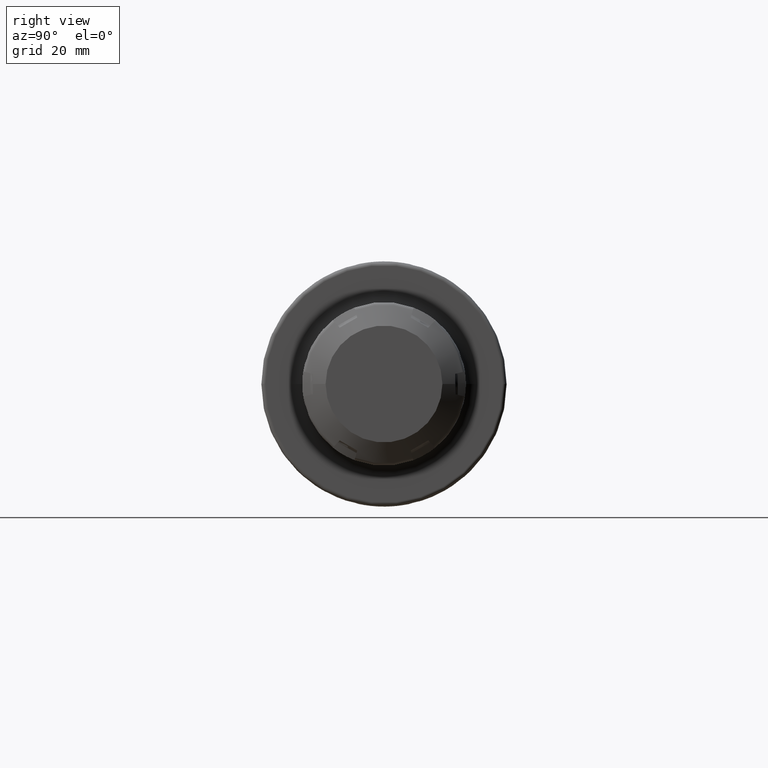
[diagram: clean part render]
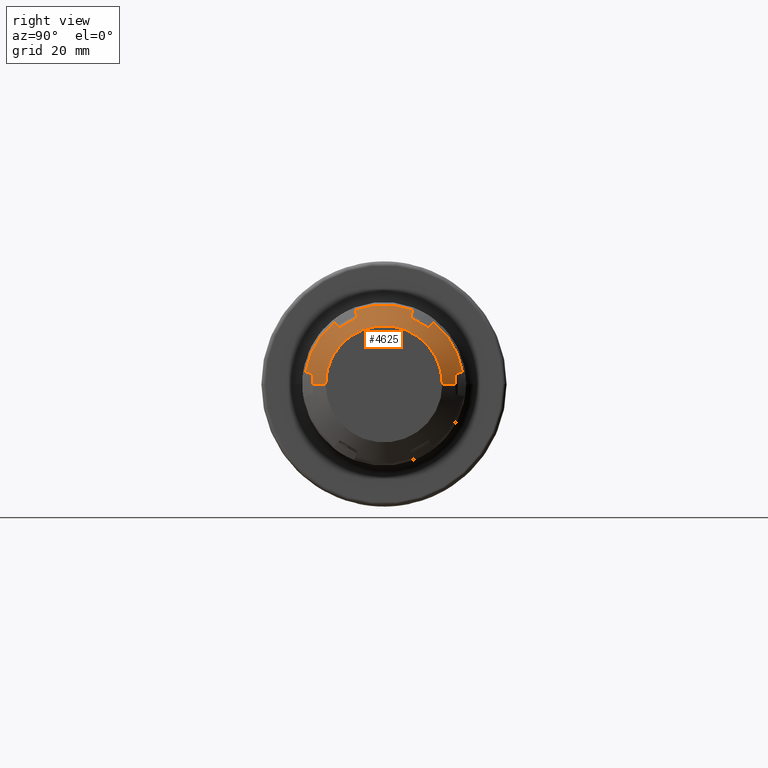
[diagram: same view with one face highlighted and labeled with its STEP entity id]
A machine part, right view. The second image highlights one B-rep face of the part: STEP entity #4625.
In plain terms, the highlighted conical surface has half-angle 60 deg.
Its self-contained STEP definition (entity closure, byte-faithful):
#3414=DIRECTION('',(-5.E-1,-8.660254037844E-1,0.E0));
#3415=VECTOR('',#3414,3.724539878802E0);
#3416=CARTESIAN_POINT('',(2.E1,-1.5E1,0.E0));
#3417=LINE('',#3416,#3415);
#3423=DIRECTION('',(-5.E-1,8.660254037844E-1,1.219275797742E-14));
#3424=VECTOR('',#3423,3.724539878802E0);
#3425=CARTESIAN_POINT('',(2.E1,1.5E1,0.E0));
#3426=LINE('',#3425,#3424);
#3668=CARTESIAN_POINT('',(1.689674230311E1,-2.014122163836E1,3.077631542997E0));
#3669=CARTESIAN_POINT('',(1.708907504526E1,-1.981659263641E1,2.996692442277E0));
#3670=CARTESIAN_POINT('',(1.747048804972E1,-1.917268684533E1,2.836148697367E0));
#3671=CARTESIAN_POINT('',(1.784538315893E1,-1.853947826048E1,2.678272065523E0));
#3672=CARTESIAN_POINT('',(1.803119743883E1,-1.822554615245E1,2.6E0));
#3674=CARTESIAN_POINT('',(1.689674230311E1,-1.915276904626E-14,0.E0));
#3675=DIRECTION('',(-1.E0,0.E0,0.E0));
#3676=DIRECTION('',(0.E0,-9.885262153796E-1,1.510494008833E-1));
#3677=AXIS2_PLACEMENT_3D('',#3674,#3675,#3676);
#3679=CARTESIAN_POINT('',(1.803119743883E1,-1.136443912607E1,1.448378596587E1));
#3680=CARTESIAN_POINT('',(1.784547076956E1,-1.158908480779E1,1.471641337916E1));
#3681=CARTESIAN_POINT('',(1.747066334160E1,-1.204230833280E1,1.518574007823E1));
#3682=CARTESIAN_POINT('',(1.708916272E1,-1.250340215670E1,1.566321671038E1));
#3683=CARTESIAN_POINT('',(1.689674230311E1,-1.273591791890E1,1.590399383057E1));
#3685=CARTESIAN_POINT('',(1.803119743883E1,-6.861107026386E0,1.708378596587E1));
#3686=CARTESIAN_POINT('',(1.807831826555E1,-7.361586372305E0,1.679483408078E1));
#3687=CARTESIAN_POINT('',(1.814168574823E1,-8.362425592320E0,1.621699928769E1));
#3688=CARTESIAN_POINT('',(1.814168449187E1,-9.863151221670E0,1.535055494160E1));
#3689=CARTESIAN_POINT('',(1.807831703246E1,-1.086397287704E1,1.477273028946E1));
#3690=CARTESIAN_POINT('',(1.803119743883E1,-1.136443912607E1,1.448378596587E1));
#3692=CARTESIAN_POINT('',(1.689674230311E1,-7.405303719456E0,1.898162537357E1));
#3693=CARTESIAN_POINT('',(1.708907504526E1,-7.313084535866E0,1.866001886072E1));
#3694=CARTESIAN_POINT('',(1.747048804972E1,-7.130166601835E0,1.802210821554E1));
#3695=CARTESIAN_POINT('',(1.784538315893E1,-6.950287483250E0,1.739479517924E1));
#3696=CARTESIAN_POINT('',(1.803119743883E1,-6.861107026386E0,1.708378596587E1));
#3698=CARTESIAN_POINT('',(1.689674230311E1,-1.915276904626E-14,0.E0));
#3699=DIRECTION('',(-1.E0,0.E0,0.E0));
#3700=DIRECTION('',(0.E0,-3.634504892985E-1,9.316135152673E-1));
#3701=AXIS2_PLACEMENT_3D('',#3698,#3699,#3700);
#3703=CARTESIAN_POINT('',(1.803119743883E1,6.861107026386E0,1.708378596587E1));
#3704=CARTESIAN_POINT('',(1.784547076956E1,6.950245435050E0,1.739464853974E1));
#3705=CARTESIAN_POINT('',(1.747066334160E1,7.130082516612E0,1.802181497552E1));
#3706=CARTESIAN_POINT('',(1.708916272E1,7.313042497819E0,1.865987225663E1));
#3707=CARTESIAN_POINT('',(1.689674230311E1,7.405303719456E0,1.898162537357E1));
#3709=CARTESIAN_POINT('',(1.803119743883E1,1.136443912607E1,1.448378596587E1));
#3710=CARTESIAN_POINT('',(1.807831826555E1,1.086395978015E1,1.477273785096E1));
#3711=CARTESIAN_POINT('',(1.814168574823E1,9.863120560131E0,1.535057264405E1));
#3712=CARTESIAN_POINT('',(1.814168449187E1,8.362394930781E0,1.621701699013E1));
#3713=CARTESIAN_POINT('',(1.807831703246E1,7.361573275411E0,1.679484164227E1));
#3714=CARTESIAN_POINT('',(1.803119743883E1,6.861107026386E0,1.708378596587E1));
#3716=CARTESIAN_POINT('',(1.689674230311E1,1.273591791890E1,1.590399383057E1));
#3717=CARTESIAN_POINT('',(1.708907504526E1,1.250350810055E1,1.566332641844E1));
#3718=CARTESIAN_POINT('',(1.747048804972E1,1.204252024350E1,1.518595951818E1));
#3719=CARTESIAN_POINT('',(1.784538315893E1,1.158919077723E1,1.471652311372E1));
#3720=CARTESIAN_POINT('',(1.803119743883E1,1.136443912607E1,1.448378596587E1));
#3722=CARTESIAN_POINT('',(1.689674230311E1,-1.915276904626E-14,0.E0));
#3723=DIRECTION('',(-1.E0,0.E0,0.E0));
#3724=DIRECTION('',(0.E0,6.250757260812E-1,7.805641143840E-1));
#3725=AXIS2_PLACEMENT_3D('',#3722,#3723,#3724);
#3727=CARTESIAN_POINT('',(1.803119743883E1,1.822554615245E1,2.6E0));
#3728=CARTESIAN_POINT('',(1.784547076956E1,1.853933024284E1,2.678235160582E0));
#3729=CARTESIAN_POINT('',(1.747066334160E1,1.917239084941E1,2.836074897296E0));
#3730=CARTESIAN_POINT('',(1.708916272E1,1.981644465452E1,2.996655546247E0));
#3731=CARTESIAN_POINT('',(1.689674230311E1,2.014122163836E1,3.077631542997E0));
#3733=CARTESIAN_POINT('',(1.813773006060E1,1.822554615245E1,
4.663706011864E-14));
#3734=CARTESIAN_POINT('',(1.813773006060E1,1.822554615245E1,2.889809035546E-1));
#3735=CARTESIAN_POINT('',(1.812978891864E1,1.822554615245E1,8.668802635554E-1));
#3736=CARTESIAN_POINT('',(1.809415446357E1,1.822554615245E1,1.733491685998E0));
#3737=CARTESIAN_POINT('',(1.805474752385E1,1.822554615245E1,2.311174784706E0));
#3738=CARTESIAN_POINT('',(1.803119743883E1,1.822554615245E1,2.6E0));
#3740=CARTESIAN_POINT('',(2.E1,-2.266909448450E-14,0.E0));
#3741=DIRECTION('',(1.E0,0.E0,0.E0));
#3742=DIRECTION('',(0.E0,1.E0,0.E0));
#3743=AXIS2_PLACEMENT_3D('',#3740,#3741,#3742);
#3745=CARTESIAN_POINT('',(1.803119743883E1,-1.822554615245E1,2.6E0));
#3746=CARTESIAN_POINT('',(1.805475075341E1,-1.822554615245E1,2.311135176476E0));
#3747=CARTESIAN_POINT('',(1.809415978675E1,-1.822554615245E1,1.733399257211E0));
#3748=CARTESIAN_POINT('',(1.812979067473E1,-1.822554615245E1,
8.668016124823E-1));
#3749=CARTESIAN_POINT('',(1.813773006060E1,-1.822554615245E1,
2.889472613190E-1));
#3750=CARTESIAN_POINT('',(1.813773006060E1,-1.822554615245E1,0.E0));
#4150=CARTESIAN_POINT('',(2.E1,1.5E1,0.E0));
#4151=CARTESIAN_POINT('',(2.E1,-1.5E1,0.E0));
#4152=VERTEX_POINT('',#4150);
#4153=VERTEX_POINT('',#4151);
#4162=VERTEX_POINT('',#3727);
#4163=VERTEX_POINT('',#3731);
#4164=VERTEX_POINT('',#3733);
#4179=VERTEX_POINT('',#3716);
#4180=VERTEX_POINT('',#3720);
#4181=VERTEX_POINT('',#3703);
#4182=VERTEX_POINT('',#3707);
#4193=VERTEX_POINT('',#3692);
#4194=VERTEX_POINT('',#3696);
#4195=VERTEX_POINT('',#3679);
#4196=VERTEX_POINT('',#3683);
#4207=VERTEX_POINT('',#3668);
#4208=VERTEX_POINT('',#3672);
#4209=VERTEX_POINT('',#3750);
#4595=CARTESIAN_POINT('',(1.844837115155E1,-2.091093176538E-14,0.E0));
#4596=DIRECTION('',(-1.E0,0.E0,0.E0));
#4597=DIRECTION('',(0.E0,1.E0,0.E0));
#4598=AXIS2_PLACEMENT_3D('',#4595,#4596,#4597);
#4599=CONICAL_SURFACE('',#4598,1.76875E1,6.E1);
#4601=ORIENTED_EDGE('',*,*,#4600,.F.);
#4602=ORIENTED_EDGE('',*,*,#4450,.T.);
#4604=ORIENTED_EDGE('',*,*,#4603,.F.);
#4606=ORIENTED_EDGE('',*,*,#4605,.F.);
#4608=ORIENTED_EDGE('',*,*,#4607,.F.);
#4609=ORIENTED_EDGE('',*,*,#4434,.T.);
#4610=ORIENTED_EDGE('',*,*,#4572,.F.);
#4611=ORIENTED_EDGE('',*,*,#4589,.F.);
#4612=ORIENTED_EDGE('',*,*,#4510,.F.);
#4613=ORIENTED_EDGE('',*,*,#4418,.T.);
#4615=ORIENTED_EDGE('',*,*,#4614,.F.);
#4617=ORIENTED_EDGE('',*,*,#4616,.F.);
#4618=ORIENTED_EDGE('',*,*,#4288,.F.);
#4619=ORIENTED_EDGE('',*,*,#4259,.T.);
#4620=ORIENTED_EDGE('',*,*,#4285,.T.);
#4622=ORIENTED_EDGE('',*,*,#4621,.F.);
#4623=EDGE_LOOP('',(#4601,#4602,#4604,#4606,#4608,#4609,#4610,#4611,#4612,#4613,
#4615,#4617,#4618,#4619,#4620,#4622));
#4624=FACE_OUTER_BOUND('',#4623,.F.);
#4625=ADVANCED_FACE('',(#4624),#4599,.T.);
#3673=B_SPLINE_CURVE_WITH_KNOTS('',3,(#3668,#3669,#3670,#3671,#3672),
.UNSPECIFIED.,.F.,.F.,(4,1,4),(0.E0,5.E-1,1.E0),.UNSPECIFIED.);
#3678=CIRCLE('',#3677,2.0375E1);
#3684=B_SPLINE_CURVE_WITH_KNOTS('',3,(#3679,#3680,#3681,#3682,#3683),
.UNSPECIFIED.,.F.,.F.,(4,1,4),(0.E0,5.E-1,1.E0),.UNSPECIFIED.);
#3691=B_SPLINE_CURVE_WITH_KNOTS('',3,(#3685,#3686,#3687,#3688,#3689,#3690),
.UNSPECIFIED.,.F.,.F.,(4,1,1,4),(0.E0,3.333333333333E-1,6.666666666667E-1,1.E0),
.UNSPECIFIED.);
#3697=B_SPLINE_CURVE_WITH_KNOTS('',3,(#3692,#3693,#3694,#3695,#3696),
.UNSPECIFIED.,.F.,.F.,(4,1,4),(0.E0,5.E-1,1.E0),.UNSPECIFIED.);
#3702=CIRCLE('',#3701,2.0375E1);
#3708=B_SPLINE_CURVE_WITH_KNOTS('',3,(#3703,#3704,#3705,#3706,#3707),
.UNSPECIFIED.,.F.,.F.,(4,1,4),(0.E0,5.E-1,1.E0),.UNSPECIFIED.);
#3715=B_SPLINE_CURVE_WITH_KNOTS('',3,(#3709,#3710,#3711,#3712,#3713,#3714),
.UNSPECIFIED.,.F.,.F.,(4,1,1,4),(0.E0,3.333333333333E-1,6.666666666667E-1,1.E0),
.UNSPECIFIED.);
#3721=B_SPLINE_CURVE_WITH_KNOTS('',3,(#3716,#3717,#3718,#3719,#3720),
.UNSPECIFIED.,.F.,.F.,(4,1,4),(0.E0,5.E-1,1.E0),.UNSPECIFIED.);
#3726=CIRCLE('',#3725,2.0375E1);
#3732=B_SPLINE_CURVE_WITH_KNOTS('',3,(#3727,#3728,#3729,#3730,#3731),
.UNSPECIFIED.,.F.,.F.,(4,1,4),(0.E0,5.E-1,1.E0),.UNSPECIFIED.);
#3739=B_SPLINE_CURVE_WITH_KNOTS('',3,(#3733,#3734,#3735,#3736,#3737,#3738),
.UNSPECIFIED.,.F.,.F.,(4,1,1,4),(0.E0,3.333333333333E-1,6.666666666667E-1,1.E0),
.UNSPECIFIED.);
#3744=CIRCLE('',#3743,1.5E1);
#3751=B_SPLINE_CURVE_WITH_KNOTS('',3,(#3745,#3746,#3747,#3748,#3749,#3750),
.UNSPECIFIED.,.F.,.F.,(4,1,1,4),(0.E0,3.333333333333E-1,6.666666666667E-1,1.E0),
.UNSPECIFIED.);
#4259=EDGE_CURVE('',#4152,#4153,#3744,.T.);
#4285=EDGE_CURVE('',#4153,#4209,#3417,.T.);
#4288=EDGE_CURVE('',#4152,#4164,#3426,.T.);
#4418=EDGE_CURVE('',#4179,#4163,#3726,.T.);
#4434=EDGE_CURVE('',#4193,#4182,#3702,.T.);
#4450=EDGE_CURVE('',#4207,#4196,#3678,.T.);
#4510=EDGE_CURVE('',#4179,#4180,#3721,.T.);
#4572=EDGE_CURVE('',#4181,#4182,#3708,.T.);
#4589=EDGE_CURVE('',#4180,#4181,#3715,.T.);
#4600=EDGE_CURVE('',#4207,#4208,#3673,.T.);
#4603=EDGE_CURVE('',#4195,#4196,#3684,.T.);
#4605=EDGE_CURVE('',#4194,#4195,#3691,.T.);
#4607=EDGE_CURVE('',#4193,#4194,#3697,.T.);
#4614=EDGE_CURVE('',#4162,#4163,#3732,.T.);
#4616=EDGE_CURVE('',#4164,#4162,#3739,.T.);
#4621=EDGE_CURVE('',#4208,#4209,#3751,.T.);